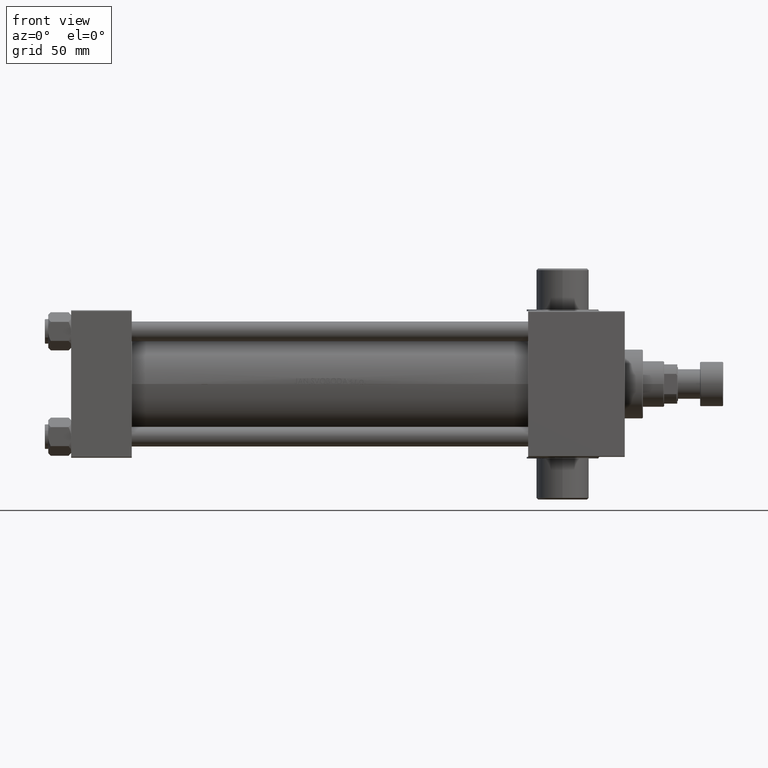
[diagram: clean part render]
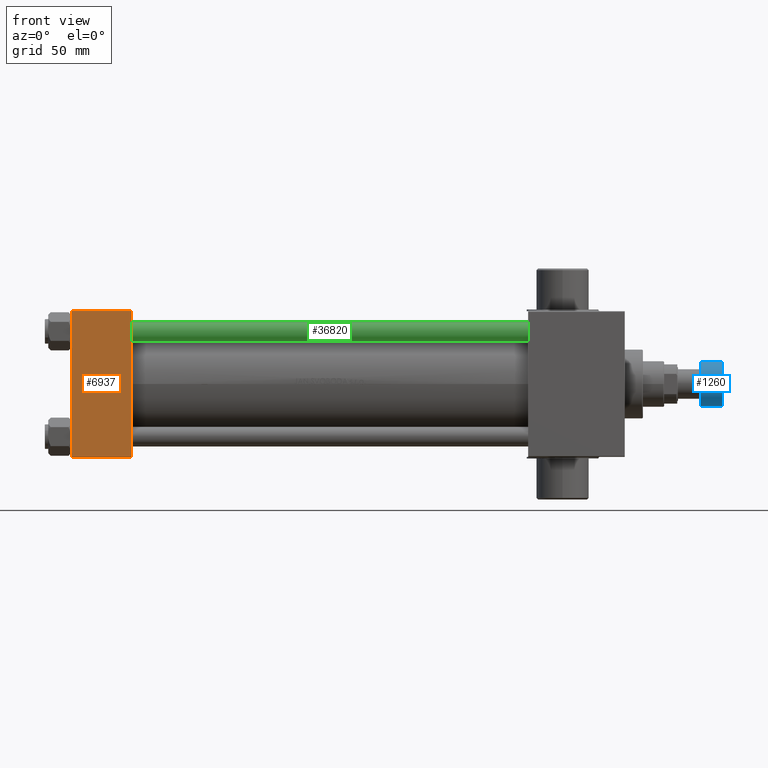
[diagram: same view with three faces highlighted in distinct colors, each labeled with its STEP entity id]
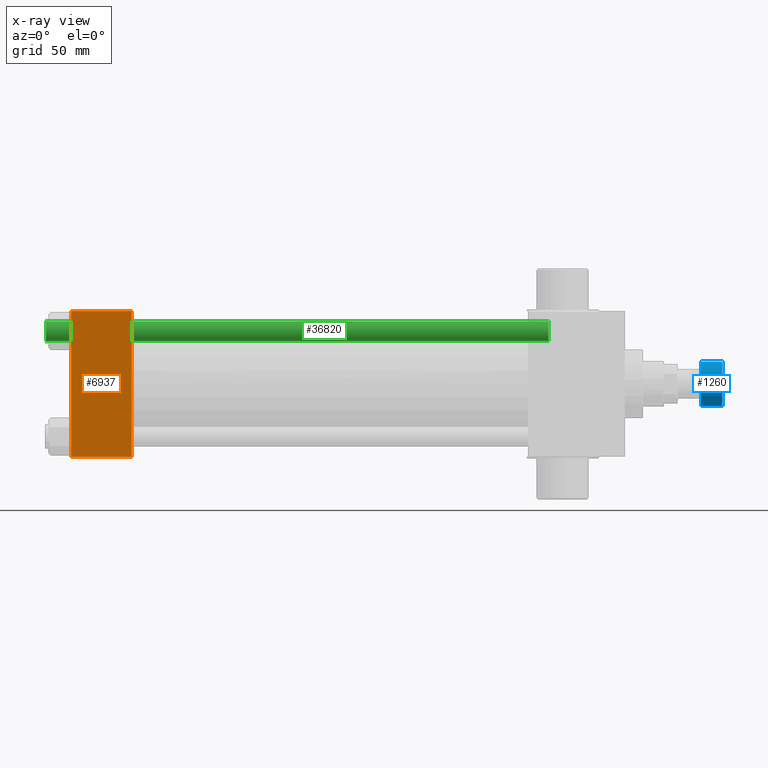
[diagram: x-ray of the same camera — body ghosted, the three highlighted faces saturated]
A machine part, front view with three faces highlighted in distinct colors.
The next image is the same camera in x-ray (body ghosted, the three faces saturated) — at least one of them is partly hidden behind the body in this view.
Their STEP definitions:

[orange] entity #6937 — the highlighted planar face has unit normal (0, -1, -0).
#6937 = ADVANCED_FACE ( 'NONE', ( #36811 ), #32996, .T. ) ;
#7307 = DIRECTION ( 'NONE',  ( 0.000000000000000000, 1.000000000000000000, 1.541976423090495880E-16 ) ) ;
#7403 = EDGE_CURVE ( 'NONE', #11666, #29837, #45827, .T. ) ;
#8926 = CARTESIAN_POINT ( 'NONE',  ( 0.000000000000000000, -44.49999999999995737, -45.00000000000000000 ) ) ;
#9133 = ORIENTED_EDGE ( 'NONE', *, *, #16038, .F. ) ;
#10966 = CARTESIAN_POINT ( 'NONE',  ( 37.00000000000000000, 44.49999999999998579, -44.99999999999998579 ) ) ;
#11666 = VERTEX_POINT ( 'NONE', #38635 ) ;
#12147 = CARTESIAN_POINT ( 'NONE',  ( 0.000000000000000000, -44.49999999999998579, -45.00000000000000000 ) ) ;
#13224 = DIRECTION ( 'NONE',  ( 1.000000000000000000, 0.000000000000000000, 0.000000000000000000 ) ) ;
#15049 = ORIENTED_EDGE ( 'NONE', *, *, #32735, .T. ) ;
#15953 = DIRECTION ( 'NONE',  ( 0.000000000000000000, -1.000000000000000000, -1.541976423090495633E-16 ) ) ;
#16002 = ORIENTED_EDGE ( 'NONE', *, *, #39953, .T. ) ;
#16038 = EDGE_CURVE ( 'NONE', #11666, #22657, #41417, .T. ) ;
#16443 = DIRECTION ( 'NONE',  ( 0.000000000000000000, -1.000000000000000000, -1.541976423090495633E-16 ) ) ;
#17167 = VECTOR ( 'NONE', #16443, 1000.000000000000000 ) ;
#18161 = ORIENTED_EDGE ( 'NONE', *, *, #7403, .T. ) ;
#18714 = DIRECTION ( 'NONE',  ( 0.000000000000000000, 1.541976423090495880E-16, -1.000000000000000000 ) ) ;
#21908 = VECTOR ( 'NONE', #41198, 1000.000000000000000 ) ;
#22163 = CARTESIAN_POINT ( 'NONE',  ( 37.00000000000000000, -44.49999999999995737, -45.00000000000000000 ) ) ;
#22657 = VERTEX_POINT ( 'NONE', #8926 ) ;
#23570 = LINE ( 'NONE', #12147, #21908 ) ;
#27178 = VECTOR ( 'NONE', #15953, 1000.000000000000000 ) ;
#28955 = VERTEX_POINT ( 'NONE', #22163 ) ;
#29609 = CARTESIAN_POINT ( 'NONE',  ( 37.00000000000000000, 44.99999999999998579, -44.99999999999998579 ) ) ;
#29837 = VERTEX_POINT ( 'NONE', #10966 ) ;
#31203 = LINE ( 'NONE', #29609, #17167 ) ;
#32735 = EDGE_CURVE ( 'NONE', #29837, #28955, #31203, .T. ) ;
#32996 = PLANE ( 'NONE',  #44477 ) ;
#33227 = EDGE_LOOP ( 'NONE', ( #9133, #18161, #15049, #16002 ) ) ;
#36811 = FACE_OUTER_BOUND ( 'NONE', #33227, .T. ) ;
#38224 = CARTESIAN_POINT ( 'NONE',  ( 37.00000000000000000, 44.49999999999998579, -44.99999999999998579 ) ) ;
#38635 = CARTESIAN_POINT ( 'NONE',  ( 0.000000000000000000, 44.49999999999998579, -44.99999999999998579 ) ) ;
#39953 = EDGE_CURVE ( 'NONE', #28955, #22657, #23570, .T. ) ;
#40627 = CARTESIAN_POINT ( 'NONE',  ( 37.00000000000000000, 44.99999999999998579, -44.99999999999998579 ) ) ;
#41198 = DIRECTION ( 'NONE',  ( -1.000000000000000000, 0.000000000000000000, 0.000000000000000000 ) ) ;
#41417 = LINE ( 'NONE', #45215, #27178 ) ;
#42192 = VECTOR ( 'NONE', #13224, 1000.000000000000000 ) ;
#44477 = AXIS2_PLACEMENT_3D ( 'NONE', #40627, #18714, #7307 ) ;
#45215 = CARTESIAN_POINT ( 'NONE',  ( 0.000000000000000000, 44.99999999999998579, -44.99999999999998579 ) ) ;
#45827 = LINE ( 'NONE', #38224, #42192 ) ;

[blue] entity #1260 — the highlighted cylindrical surface (edge-blend (fillet) strip) has radius 13.5 mm, axis along (1, 0, 0).
#1260 = ADVANCED_FACE ( 'NONE', ( #1786 ), #30810, .T. ) ;
#1786 = FACE_OUTER_BOUND ( 'NONE', #37473, .T. ) ;
#5335 = EDGE_CURVE ( 'NONE', #44763, #22365, #12028, .T. ) ;
#5942 = DIRECTION ( 'NONE',  ( 0.000000000000000000, 0.000000000000000000, 1.000000000000000000 ) ) ;
#8046 = CIRCLE ( 'NONE', #20205, 13.50000000000000000 ) ;
#9267 = LINE ( 'NONE', #9498, #15183 ) ;
#9498 = CARTESIAN_POINT ( 'NONE',  ( 13.50000000000000000, 0.000000000000000000, -14.00000000000000000 ) ) ;
#11787 = CARTESIAN_POINT ( 'NONE',  ( -13.50000000000000000, 1.653273178848926867E-15, -14.00000000000000000 ) ) ;
#12028 = LINE ( 'NONE', #11787, #29966 ) ;
#12423 = VERTEX_POINT ( 'NONE', #35650 ) ;
#12726 = DIRECTION ( 'NONE',  ( 0.000000000000000000, 0.000000000000000000, 1.000000000000000000 ) ) ;
#12734 = CIRCLE ( 'NONE', #24888, 13.50000000000000000 ) ;
#12878 = CARTESIAN_POINT ( 'NONE',  ( -13.50000000000000000, 1.653273178848926867E-15, -13.50000000000000000 ) ) ;
#15183 = VECTOR ( 'NONE', #5942, 1000.000000000000000 ) ;
#15592 = AXIS2_PLACEMENT_3D ( 'NONE', #34376, #12726, #45325 ) ;
#17506 = CARTESIAN_POINT ( 'NONE',  ( 0.000000000000000000, 0.000000000000000000, -13.50000000000000000 ) ) ;
#17528 = CARTESIAN_POINT ( 'NONE',  ( 13.50000000000000000, 0.000000000000000000, -0.5000000000000004441 ) ) ;
#17729 = ORIENTED_EDGE ( 'NONE', *, *, #33323, .T. ) ;
#20205 = AXIS2_PLACEMENT_3D ( 'NONE', #17506, #38464, #23944 ) ;
#21548 = VERTEX_POINT ( 'NONE', #17528 ) ;
#22365 = VERTEX_POINT ( 'NONE', #30885 ) ;
#23944 = DIRECTION ( 'NONE',  ( 1.000000000000000000, 0.000000000000000000, 0.000000000000000000 ) ) ;
#24888 = AXIS2_PLACEMENT_3D ( 'NONE', #35122, #42499, #35351 ) ;
#28281 = ORIENTED_EDGE ( 'NONE', *, *, #46037, .T. ) ;
#29826 = ORIENTED_EDGE ( 'NONE', *, *, #37567, .T. ) ;
#29966 = VECTOR ( 'NONE', #41078, 1000.000000000000000 ) ;
#30810 = CYLINDRICAL_SURFACE ( 'NONE', #15592, 13.50000000000000000 ) ;
#30885 = CARTESIAN_POINT ( 'NONE',  ( -13.50000000000000000, 1.653273178848926867E-15, -0.5000000000000004441 ) ) ;
#33323 = EDGE_CURVE ( 'NONE', #44763, #12423, #8046, .T. ) ;
#34376 = CARTESIAN_POINT ( 'NONE',  ( 0.000000000000000000, 0.000000000000000000, -14.00000000000000000 ) ) ;
#35122 = CARTESIAN_POINT ( 'NONE',  ( 0.000000000000000000, 0.000000000000000000, -0.5000000000000004441 ) ) ;
#35351 = DIRECTION ( 'NONE',  ( 1.000000000000000000, 0.000000000000000000, 0.000000000000000000 ) ) ;
#35650 = CARTESIAN_POINT ( 'NONE',  ( 13.50000000000000000, 0.000000000000000000, -13.50000000000000000 ) ) ;
#37473 = EDGE_LOOP ( 'NONE', ( #39179, #17729, #28281, #29826 ) ) ;
#37567 = EDGE_CURVE ( 'NONE', #21548, #22365, #12734, .T. ) ;
#38464 = DIRECTION ( 'NONE',  ( 0.000000000000000000, 0.000000000000000000, 1.000000000000000000 ) ) ;
#39179 = ORIENTED_EDGE ( 'NONE', *, *, #5335, .F. ) ;
#41078 = DIRECTION ( 'NONE',  ( 0.000000000000000000, 0.000000000000000000, 1.000000000000000000 ) ) ;
#42499 = DIRECTION ( 'NONE',  ( -0.000000000000000000, -0.000000000000000000, -1.000000000000000000 ) ) ;
#44763 = VERTEX_POINT ( 'NONE', #12878 ) ;
#45325 = DIRECTION ( 'NONE',  ( 1.000000000000000000, 0.000000000000000000, 0.000000000000000000 ) ) ;
#46037 = EDGE_CURVE ( 'NONE', #12423, #21548, #9267, .T. ) ;

[green] entity #36820 — the highlighted cylindrical surface (edge-blend (fillet) strip) has radius 6 mm, axis along (-1, 0, 0).
#262 = DIRECTION ( 'NONE',  ( -0.000000000000000000, -0.000000000000000000, -1.000000000000000000 ) ) ;
#1066 = AXIS2_PLACEMENT_3D ( 'NONE', #26756, #5102, #37697 ) ;
#2256 = VERTEX_POINT ( 'NONE', #4700 ) ;
#3238 = CARTESIAN_POINT ( 'NONE',  ( 6.000000000000000888, 7.347880794884120722E-16, 308.0000000000000000 ) ) ;
#3249 = EDGE_CURVE ( 'NONE', #2256, #30453, #42095, .T. ) ;
#3630 = DIRECTION ( 'NONE',  ( -1.000000000000000000, 0.000000000000000000, 0.000000000000000000 ) ) ;
#3773 = VECTOR ( 'NONE', #262, 1000.000000000000000 ) ;
#4700 = CARTESIAN_POINT ( 'NONE',  ( 6.000000000000000888, 7.347880794884120722E-16, 0.5000000000000559552 ) ) ;
#5102 = DIRECTION ( 'NONE',  ( -0.000000000000000000, -0.000000000000000000, 1.000000000000000000 ) ) ;
#7195 = FACE_OUTER_BOUND ( 'NONE', #8719, .T. ) ;
#8719 = EDGE_LOOP ( 'NONE', ( #16866, #36133, #22512, #27454 ) ) ;
#10499 = CARTESIAN_POINT ( 'NONE',  ( -6.000000000000000888, 0.000000000000000000, 307.4999999999999432 ) ) ;
#11201 = CARTESIAN_POINT ( 'NONE',  ( -6.000000000000000888, 0.000000000000000000, 308.0000000000000000 ) ) ;
#15218 = AXIS2_PLACEMENT_3D ( 'NONE', #45286, #41731, #38152 ) ;
#16619 = VERTEX_POINT ( 'NONE', #24378 ) ;
#16866 = ORIENTED_EDGE ( 'NONE', *, *, #23014, .T. ) ;
#17490 = CIRCLE ( 'NONE', #15218, 6.000000000000000888 ) ;
#21714 = CYLINDRICAL_SURFACE ( 'NONE', #40091, 6.000000000000000888 ) ;
#21949 = DIRECTION ( 'NONE',  ( -0.000000000000000000, -0.000000000000000000, -1.000000000000000000 ) ) ;
#22512 = ORIENTED_EDGE ( 'NONE', *, *, #3249, .T. ) ;
#23014 = EDGE_CURVE ( 'NONE', #41984, #16619, #17490, .T. ) ;
#24183 = LINE ( 'NONE', #3238, #40778 ) ;
#24378 = CARTESIAN_POINT ( 'NONE',  ( 6.000000000000000888, 7.347880794884120722E-16, 307.4999999999999432 ) ) ;
#25016 = LINE ( 'NONE', #11201, #3773 ) ;
#26756 = CARTESIAN_POINT ( 'NONE',  ( 0.000000000000000000, 0.000000000000000000, 0.5000000000000559552 ) ) ;
#27454 = ORIENTED_EDGE ( 'NONE', *, *, #45685, .F. ) ;
#30453 = VERTEX_POINT ( 'NONE', #46808 ) ;
#31952 = CARTESIAN_POINT ( 'NONE',  ( 0.000000000000000000, 0.000000000000000000, 308.0000000000000000 ) ) ;
#34185 = EDGE_CURVE ( 'NONE', #16619, #2256, #24183, .T. ) ;
#36133 = ORIENTED_EDGE ( 'NONE', *, *, #34185, .T. ) ;
#36820 = ADVANCED_FACE ( 'NONE', ( #7195 ), #21714, .T. ) ;
#37697 = DIRECTION ( 'NONE',  ( 1.000000000000000000, 0.000000000000000000, 0.000000000000000000 ) ) ;
#38152 = DIRECTION ( 'NONE',  ( 1.000000000000000000, 0.000000000000000000, 0.000000000000000000 ) ) ;
#40091 = AXIS2_PLACEMENT_3D ( 'NONE', #31952, #21949, #3630 ) ;
#40778 = VECTOR ( 'NONE', #46324, 1000.000000000000000 ) ;
#41731 = DIRECTION ( 'NONE',  ( 0.000000000000000000, 0.000000000000000000, -1.000000000000000000 ) ) ;
#41984 = VERTEX_POINT ( 'NONE', #10499 ) ;
#42095 = CIRCLE ( 'NONE', #1066, 6.000000000000000888 ) ;
#45286 = CARTESIAN_POINT ( 'NONE',  ( 0.000000000000000000, 0.000000000000000000, 307.4999999999999432 ) ) ;
#45685 = EDGE_CURVE ( 'NONE', #41984, #30453, #25016, .T. ) ;
#46324 = DIRECTION ( 'NONE',  ( -0.000000000000000000, -0.000000000000000000, -1.000000000000000000 ) ) ;
#46808 = CARTESIAN_POINT ( 'NONE',  ( -6.000000000000000888, 0.000000000000000000, 0.5000000000000559552 ) ) ;